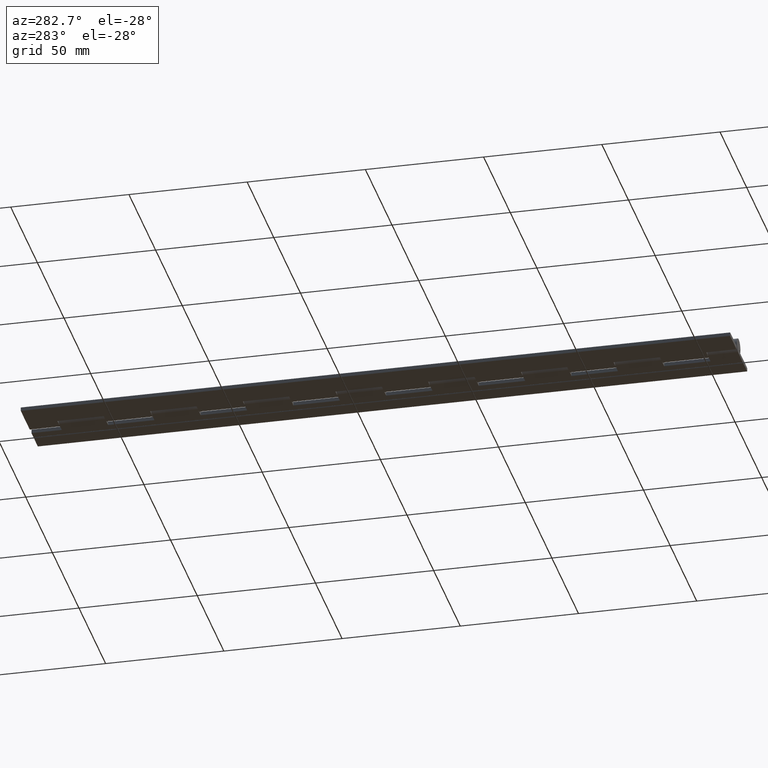
[diagram: clean part render]
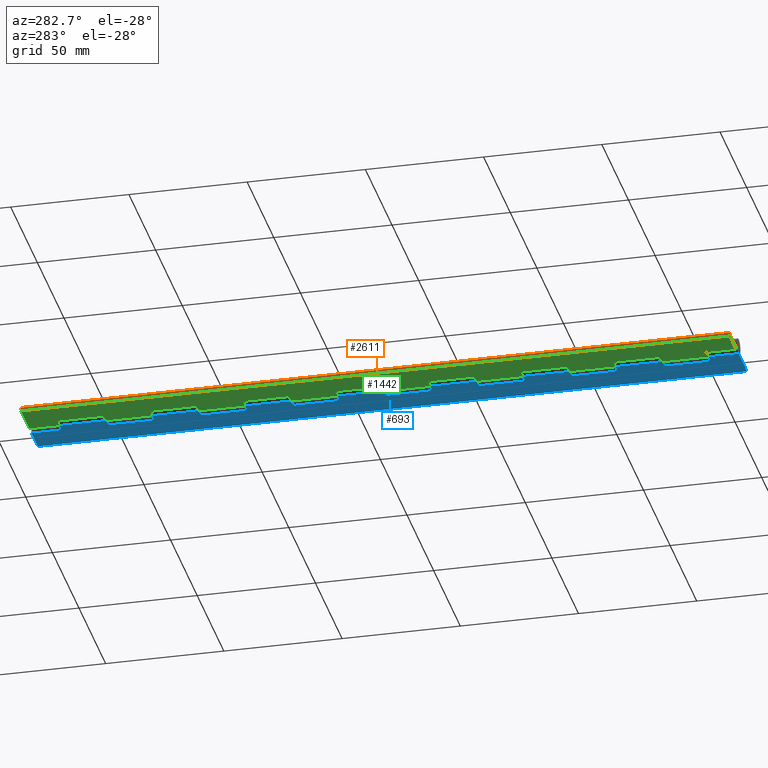
[diagram: same view with three faces highlighted in distinct colors, each labeled with its STEP entity id]
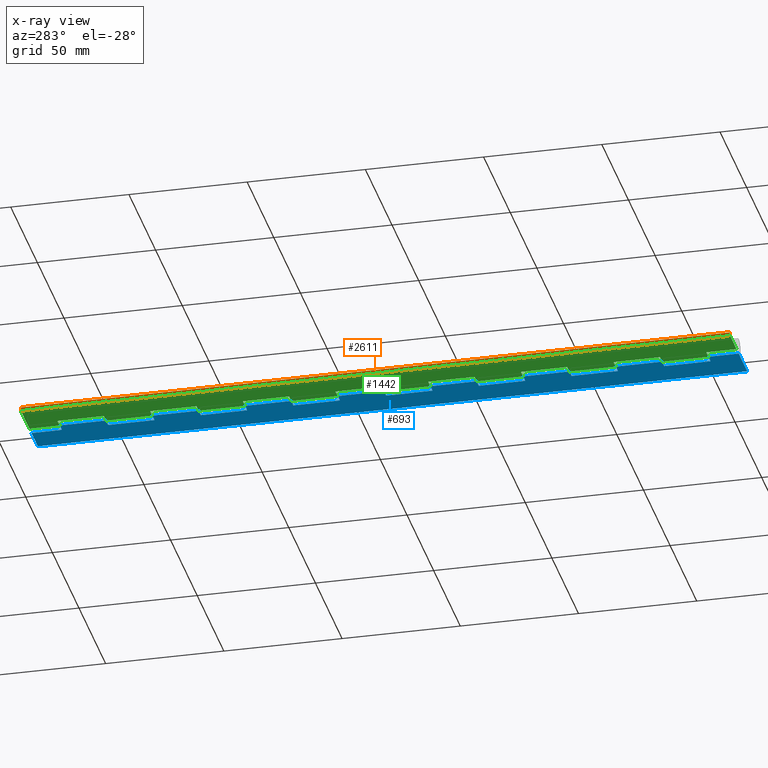
[diagram: x-ray of the same camera — body ghosted, the three highlighted faces saturated]
A machine part, auxiliary view with three faces highlighted in distinct colors.
The next image is the same camera in x-ray (body ghosted, the three faces saturated) — at least one of them is partly hidden behind the body in this view.
Their STEP definitions:

[orange] entity #2611 — the highlighted planar face has unit normal (1, 0, 0).
#19 = CARTESIAN_POINT ( 'NONE',  ( -15.99999982459446300, -12.80000000000000100, -1.750000000000000400 ) ) ;
#212 = VECTOR ( 'NONE', #2826, 1000.000000000000000 ) ;
#363 = CARTESIAN_POINT ( 'NONE',  ( -15.99999982459446300, 274.3999999999999800, -1.750000000000000400 ) ) ;
#651 = DIRECTION ( 'NONE',  ( 1.000000000000000000, -0.0000000000000000000, 0.0000000000000000000 ) ) ;
#685 = LINE ( 'NONE', #2780, #2772 ) ;
#710 = LINE ( 'NONE', #1736, #2128 ) ;
#745 = EDGE_CURVE ( 'NONE', #3490, #2467, #1522, .T. ) ;
#760 = VECTOR ( 'NONE', #2177, 1000.000000000000000 ) ;
#933 = ORIENTED_EDGE ( 'NONE', *, *, #1946, .F. ) ;
#1041 = EDGE_CURVE ( 'NONE', #3054, #2940, #710, .T. ) ;
#1179 = ORIENTED_EDGE ( 'NONE', *, *, #1041, .T. ) ;
#1505 = EDGE_CURVE ( 'NONE', #3054, #3490, #3155, .T. ) ;
#1511 = ORIENTED_EDGE ( 'NONE', *, *, #745, .F. ) ;
#1522 = LINE ( 'NONE', #2685, #760 ) ;
#1662 = FACE_OUTER_BOUND ( 'NONE', #3562, .T. ) ;
#1736 = CARTESIAN_POINT ( 'NONE',  ( -15.99999982459446300, 274.3999999999999800, -3.350000000000000500 ) ) ;
#1946 = EDGE_CURVE ( 'NONE', #2467, #2940, #685, .T. ) ;
#2064 = PLANE ( 'NONE',  #3243 ) ;
#2128 = VECTOR ( 'NONE', #3609, 1000.000000000000000 ) ;
#2177 = DIRECTION ( 'NONE',  ( -0.0000000000000000000, -1.000000000000000000, -0.0000000000000000000 ) ) ;
#2394 = CARTESIAN_POINT ( 'NONE',  ( -15.99999982459446300, 287.1999999999999300, -3.350000000000000500 ) ) ;
#2416 = CARTESIAN_POINT ( 'NONE',  ( -15.99999982459446300, 287.1999999999999300, -1.750000000000000400 ) ) ;
#2467 = VERTEX_POINT ( 'NONE', #19 ) ;
#2511 = ORIENTED_EDGE ( 'NONE', *, *, #1505, .F. ) ;
#2611 = ADVANCED_FACE ( 'NONE', ( #1662 ), #2064, .F. ) ;
#2632 = DIRECTION ( 'NONE',  ( 0.0000000000000000000, 0.0000000000000000000, -1.000000000000000000 ) ) ;
#2685 = CARTESIAN_POINT ( 'NONE',  ( -15.99999982459446300, 274.3999999999999800, -1.750000000000000400 ) ) ;
#2772 = VECTOR ( 'NONE', #2818, 1000.000000000000000 ) ;
#2780 = CARTESIAN_POINT ( 'NONE',  ( -15.99999982459446300, -12.80000000000000100, -1.750000000000000400 ) ) ;
#2818 = DIRECTION ( 'NONE',  ( 0.0000000000000000000, 0.0000000000000000000, -1.000000000000000000 ) ) ;
#2826 = DIRECTION ( 'NONE',  ( 0.0000000000000000000, 0.0000000000000000000, 1.000000000000000000 ) ) ;
#2913 = CARTESIAN_POINT ( 'NONE',  ( -15.99999982459446300, -12.80000000000000100, -3.350000000000000500 ) ) ;
#2940 = VERTEX_POINT ( 'NONE', #2913 ) ;
#3054 = VERTEX_POINT ( 'NONE', #2394 ) ;
#3106 = CARTESIAN_POINT ( 'NONE',  ( -15.99999982459446300, 287.1999999999999300, -3.350000000000000500 ) ) ;
#3155 = LINE ( 'NONE', #3106, #212 ) ;
#3243 = AXIS2_PLACEMENT_3D ( 'NONE', #363, #651, #2632 ) ;
#3490 = VERTEX_POINT ( 'NONE', #2416 ) ;
#3562 = EDGE_LOOP ( 'NONE', ( #1179, #933, #1511, #2511 ) ) ;
#3609 = DIRECTION ( 'NONE',  ( -0.0000000000000000000, -1.000000000000000000, -0.0000000000000000000 ) ) ;

[blue] entity #693 — the highlighted planar face has unit normal (0, 0, 1).
#8 = DIRECTION ( 'NONE',  ( -0.0000000000000000000, -1.000000000000000000, -0.0000000000000000000 ) ) ;
#75 = CARTESIAN_POINT ( 'NONE',  ( 4.000000000000000000, 254.8000000000000400, -3.350002187502757700 ) ) ;
#94 = LINE ( 'NONE', #1856, #3033 ) ;
#98 = LINE ( 'NONE', #2077, #2269 ) ;
#134 = EDGE_CURVE ( 'NONE', #3326, #480, #3561, .T. ) ;
#144 = VECTOR ( 'NONE', #251, 1000.000000000000000 ) ;
#145 = EDGE_CURVE ( 'NONE', #241, #1730, #534, .T. ) ;
#151 = CARTESIAN_POINT ( 'NONE',  ( 0.0000000000000000000, 235.2000000000000200, -3.350002187502757700 ) ) ;
#172 = DIRECTION ( 'NONE',  ( 1.770125995894701000E-016, 1.000000000000000000, -0.0000000000000000000 ) ) ;
#184 = VECTOR ( 'NONE', #2425, 1000.000000000000000 ) ;
#221 = ORIENTED_EDGE ( 'NONE', *, *, #1506, .T. ) ;
#225 = CARTESIAN_POINT ( 'NONE',  ( 0.0000000000000000000, 274.4000000000000300, -3.350002187502757700 ) ) ;
#231 = DIRECTION ( 'NONE',  ( -1.000000000000000000, -0.0000000000000000000, -0.0000000000000000000 ) ) ;
#241 = VERTEX_POINT ( 'NONE', #1503 ) ;
#242 = DIRECTION ( 'NONE',  ( 1.000000000000000000, 0.0000000000000000000, -1.084202172485504400E-016 ) ) ;
#243 = CARTESIAN_POINT ( 'NONE',  ( 0.0000000000000000000, 78.40000000000000600, -3.350002187502757700 ) ) ;
#245 = CARTESIAN_POINT ( 'NONE',  ( -6.153854184092820600E-016, -12.80000000000000100, -3.350002187502755900 ) ) ;
#249 = CARTESIAN_POINT ( 'NONE',  ( 4.000000000000000000, 137.2000000000000200, -3.350002187502757700 ) ) ;
#251 = DIRECTION ( 'NONE',  ( -0.0000000000000000000, -1.000000000000000000, -0.0000000000000000000 ) ) ;
#264 = VECTOR ( 'NONE', #1587, 1000.000000000000000 ) ;
#276 = CARTESIAN_POINT ( 'NONE',  ( 16.00000000000000000, 274.3999999999999800, -3.350002187502757700 ) ) ;
#301 = LINE ( 'NONE', #1347, #891 ) ;
#310 = VECTOR ( 'NONE', #1083, 1000.000000000000000 ) ;
#327 = CARTESIAN_POINT ( 'NONE',  ( 4.000000000000000000, 98.00000000000001400, -3.350002187502757700 ) ) ;
#343 = DIRECTION ( 'NONE',  ( 1.000000000000000000, 0.0000000000000000000, -1.084202172485504400E-016 ) ) ;
#358 = ORIENTED_EDGE ( 'NONE', *, *, #446, .T. ) ;
#359 = VECTOR ( 'NONE', #1954, 1000.000000000000000 ) ;
#400 = ORIENTED_EDGE ( 'NONE', *, *, #3464, .F. ) ;
#429 = EDGE_CURVE ( 'NONE', #2158, #2239, #577, .T. ) ;
#432 = DIRECTION ( 'NONE',  ( 1.000000000000000000, 0.0000000000000000000, -1.084202172485504400E-016 ) ) ;
#438 = CARTESIAN_POINT ( 'NONE',  ( -3.350002187502754100, 0.0000000000000000000, -3.350002187502757700 ) ) ;
#446 = EDGE_CURVE ( 'NONE', #1811, #1162, #2934, .T. ) ;
#447 = DIRECTION ( 'NONE',  ( -0.0000000000000000000, -1.000000000000000000, -0.0000000000000000000 ) ) ;
#448 = CARTESIAN_POINT ( 'NONE',  ( -3.350002187502757700, 176.4000000000000300, -3.350002187502757700 ) ) ;
#459 = VECTOR ( 'NONE', #2970, 1000.000000000000000 ) ;
#462 = EDGE_CURVE ( 'NONE', #3186, #3430, #2755, .T. ) ;
#463 = LINE ( 'NONE', #2866, #3394 ) ;
#467 = CARTESIAN_POINT ( 'NONE',  ( 16.00000000000000000, 274.3999999999999800, -3.350002187502757700 ) ) ;
#470 = VERTEX_POINT ( 'NONE', #3616 ) ;
#480 = VERTEX_POINT ( 'NONE', #1375 ) ;
#483 = CARTESIAN_POINT ( 'NONE',  ( 0.0000000000000000000, 117.6000000000000100, -3.350002187502757700 ) ) ;
#491 = CARTESIAN_POINT ( 'NONE',  ( 3.999999999999996400, 235.2000000000000200, -3.350002187502756400 ) ) ;
#492 = ORIENTED_EDGE ( 'NONE', *, *, #2831, .T. ) ;
#524 = EDGE_CURVE ( 'NONE', #764, #3607, #1908, .T. ) ;
#530 = ORIENTED_EDGE ( 'NONE', *, *, #2677, .T. ) ;
#534 = LINE ( 'NONE', #585, #3474 ) ;
#538 = DIRECTION ( 'NONE',  ( -0.0000000000000000000, -1.000000000000000000, -0.0000000000000000000 ) ) ;
#551 = CARTESIAN_POINT ( 'NONE',  ( -3.350002187502757700, 215.6000000000000500, -3.350002187502757700 ) ) ;
#560 = VERTEX_POINT ( 'NONE', #249 ) ;
#576 = ORIENTED_EDGE ( 'NONE', *, *, #3099, .T. ) ;
#577 = LINE ( 'NONE', #438, #3515 ) ;
#585 = CARTESIAN_POINT ( 'NONE',  ( 0.0000000000000000000, 274.3999999999999800, -3.350002187502755900 ) ) ;
#616 = CARTESIAN_POINT ( 'NONE',  ( 0.0000000000000000000, 176.4000000000000300, -3.350002187502757700 ) ) ;
#622 = ORIENTED_EDGE ( 'NONE', *, *, #1754, .T. ) ;
#657 = EDGE_CURVE ( 'NONE', #1349, #1979, #3378, .T. ) ;
#680 = EDGE_CURVE ( 'NONE', #3406, #1159, #1785, .T. ) ;
#682 = CARTESIAN_POINT ( 'NONE',  ( 16.00000000000000000, 287.1999999999999300, -3.350002187502757700 ) ) ;
#693 = ADVANCED_FACE ( 'NONE', ( #3211 ), #1599, .F. ) ;
#696 = DIRECTION ( 'NONE',  ( -0.0000000000000000000, -1.000000000000000000, -0.0000000000000000000 ) ) ;
#713 = ORIENTED_EDGE ( 'NONE', *, *, #2769, .T. ) ;
#724 = VECTOR ( 'NONE', #1197, 1000.000000000000000 ) ;
#748 = CARTESIAN_POINT ( 'NONE',  ( 0.0000000000000000000, 274.3999999999999800, -3.350002187502755900 ) ) ;
#757 = VECTOR ( 'NONE', #2647, 1000.000000000000000 ) ;
#762 = ORIENTED_EDGE ( 'NONE', *, *, #2765, .T. ) ;
#764 = VERTEX_POINT ( 'NONE', #225 ) ;
#818 = LINE ( 'NONE', #2148, #2991 ) ;
#821 = LINE ( 'NONE', #3654, #144 ) ;
#856 = ORIENTED_EDGE ( 'NONE', *, *, #1649, .F. ) ;
#861 = LINE ( 'NONE', #448, #184 ) ;
#886 = CARTESIAN_POINT ( 'NONE',  ( 4.000000000000000000, 294.0000000000000600, -3.350002187502757700 ) ) ;
#891 = VECTOR ( 'NONE', #231, 1000.000000000000000 ) ;
#894 = DIRECTION ( 'NONE',  ( 1.000000000000000000, 0.0000000000000000000, 0.0000000000000000000 ) ) ;
#917 = VERTEX_POINT ( 'NONE', #3342 ) ;
#929 = DIRECTION ( 'NONE',  ( -0.0000000000000000000, -1.000000000000000000, -0.0000000000000000000 ) ) ;
#932 = CARTESIAN_POINT ( 'NONE',  ( 16.00000000000000000, 117.6000000000000100, -3.350002187502757700 ) ) ;
#939 = VECTOR ( 'NONE', #2711, 1000.000000000000000 ) ;
#942 = CARTESIAN_POINT ( 'NONE',  ( 3.999999999999996400, 274.4000000000000300, -3.350002187502757700 ) ) ;
#945 = VERTEX_POINT ( 'NONE', #616 ) ;
#951 = EDGE_LOOP ( 'NONE', ( #2530, #1037, #1697, #2356, #856, #3028, #2257, #762, #2933, #2169, #3600, #2088, #576, #2754, #492, #2661, #1156, #400, #2570, #1738, #221, #3069, #1822, #1466, #713, #1372, #622, #530, #1956, #1867, #358, #2526, #1033, #2438 ) ) ;
#956 = VERTEX_POINT ( 'NONE', #243 ) ;
#995 = CARTESIAN_POINT ( 'NONE',  ( 4.000000000000000000, 215.6000000000000500, -3.350002187502757700 ) ) ;
#1006 = DIRECTION ( 'NONE',  ( -1.000000000000000000, -0.0000000000000000000, -0.0000000000000000000 ) ) ;
#1017 = CARTESIAN_POINT ( 'NONE',  ( 0.0000000000000000000, -12.80000000000000100, -3.350002187502755900 ) ) ;
#1024 = CARTESIAN_POINT ( 'NONE',  ( 0.0000000000000000000, 274.3999999999999800, -3.350002187502755900 ) ) ;
#1033 = ORIENTED_EDGE ( 'NONE', *, *, #1950, .T. ) ;
#1037 = ORIENTED_EDGE ( 'NONE', *, *, #134, .T. ) ;
#1058 = EDGE_CURVE ( 'NONE', #3575, #3340, #2793, .T. ) ;
#1072 = VERTEX_POINT ( 'NONE', #3462 ) ;
#1079 = VERTEX_POINT ( 'NONE', #483 ) ;
#1083 = DIRECTION ( 'NONE',  ( -0.0000000000000000000, -1.000000000000000000, -0.0000000000000000000 ) ) ;
#1103 = EDGE_CURVE ( 'NONE', #241, #3186, #1953, .T. ) ;
#1156 = ORIENTED_EDGE ( 'NONE', *, *, #657, .T. ) ;
#1159 = VERTEX_POINT ( 'NONE', #2660 ) ;
#1162 = VERTEX_POINT ( 'NONE', #491 ) ;
#1183 = CARTESIAN_POINT ( 'NONE',  ( 4.000000000000000000, 19.60000000000000100, -3.350002187502757700 ) ) ;
#1195 = LINE ( 'NONE', #245, #3370 ) ;
#1197 = DIRECTION ( 'NONE',  ( -1.000000000000000000, 0.0000000000000000000, 1.084202172485504400E-016 ) ) ;
#1243 = EDGE_CURVE ( 'NONE', #956, #1072, #3466, .T. ) ;
#1246 = LINE ( 'NONE', #551, #3420 ) ;
#1265 = VECTOR ( 'NONE', #3068, 1000.000000000000000 ) ;
#1284 = VECTOR ( 'NONE', #242, 1000.000000000000000 ) ;
#1293 = EDGE_CURVE ( 'NONE', #2466, #1349, #2251, .T. ) ;
#1296 = CARTESIAN_POINT ( 'NONE',  ( 16.00000000000000000, 235.2000000000000200, -3.350002187502757700 ) ) ;
#1322 = VERTEX_POINT ( 'NONE', #3182 ) ;
#1332 = VECTOR ( 'NONE', #1963, 1000.000000000000000 ) ;
#1344 = VECTOR ( 'NONE', #2195, 1000.000000000000000 ) ;
#1347 = CARTESIAN_POINT ( 'NONE',  ( -3.350002187502757700, 137.2000000000000200, -3.350002187502757700 ) ) ;
#1349 = VERTEX_POINT ( 'NONE', #3196 ) ;
#1355 = EDGE_CURVE ( 'NONE', #3604, #945, #2083, .T. ) ;
#1359 = CARTESIAN_POINT ( 'NONE',  ( 0.0000000000000000000, 274.3999999999999800, -3.350002187502755900 ) ) ;
#1372 = ORIENTED_EDGE ( 'NONE', *, *, #1355, .F. ) ;
#1375 = CARTESIAN_POINT ( 'NONE',  ( 3.999999999999999100, 287.1999999999999300, -3.350002187502757700 ) ) ;
#1389 = LINE ( 'NONE', #1613, #2813 ) ;
#1466 = ORIENTED_EDGE ( 'NONE', *, *, #3415, .T. ) ;
#1470 = EDGE_CURVE ( 'NONE', #3409, #3617, #1246, .T. ) ;
#1489 = CARTESIAN_POINT ( 'NONE',  ( 0.0000000000000000000, 274.3999999999999800, -3.350002187502755900 ) ) ;
#1496 = VECTOR ( 'NONE', #1543, 1000.000000000000000 ) ;
#1500 = CARTESIAN_POINT ( 'NONE',  ( 16.00000000000000000, 287.1999999999999300, -3.350002187502757700 ) ) ;
#1501 = VERTEX_POINT ( 'NONE', #3632 ) ;
#1503 = CARTESIAN_POINT ( 'NONE',  ( 0.0000000000000000000, 39.20000000000000300, -3.350002187502757700 ) ) ;
#1506 = EDGE_CURVE ( 'NONE', #560, #1322, #301, .T. ) ;
#1543 = DIRECTION ( 'NONE',  ( 1.770125995894701000E-016, 1.000000000000000000, -0.0000000000000000000 ) ) ;
#1573 = CARTESIAN_POINT ( 'NONE',  ( 0.0000000000000000000, 274.3999999999999800, -3.350002187502755900 ) ) ;
#1580 = VECTOR ( 'NONE', #1006, 1000.000000000000000 ) ;
#1587 = DIRECTION ( 'NONE',  ( -0.0000000000000000000, -1.000000000000000000, -0.0000000000000000000 ) ) ;
#1598 = DIRECTION ( 'NONE',  ( 1.000000000000000000, 0.0000000000000000000, 0.0000000000000000000 ) ) ;
#1599 = PLANE ( 'NONE',  #1686 ) ;
#1613 = CARTESIAN_POINT ( 'NONE',  ( 16.00000000000000000, 78.40000000000002000, -3.350002187502757700 ) ) ;
#1617 = EDGE_CURVE ( 'NONE', #3575, #1322, #2031, .T. ) ;
#1643 = DIRECTION ( 'NONE',  ( 1.000000000000000000, 0.0000000000000000000, -1.084202172485504400E-016 ) ) ;
#1649 = EDGE_CURVE ( 'NONE', #1816, #1159, #1195, .T. ) ;
#1684 = CARTESIAN_POINT ( 'NONE',  ( 0.0000000000000000000, 196.0000000000000300, -3.350002187502757700 ) ) ;
#1686 = AXIS2_PLACEMENT_3D ( 'NONE', #467, #3569, #2736 ) ;
#1689 = LINE ( 'NONE', #2460, #939 ) ;
#1697 = ORIENTED_EDGE ( 'NONE', *, *, #2604, .F. ) ;
#1709 = CARTESIAN_POINT ( 'NONE',  ( 0.0000000000000000000, 0.0000000000000000000, -3.350002187502757700 ) ) ;
#1730 = VERTEX_POINT ( 'NONE', #3035 ) ;
#1738 = ORIENTED_EDGE ( 'NONE', *, *, #2827, .T. ) ;
#1754 = EDGE_CURVE ( 'NONE', #3604, #917, #1689, .T. ) ;
#1785 = LINE ( 'NONE', #276, #264 ) ;
#1811 = VERTEX_POINT ( 'NONE', #151 ) ;
#1816 = VERTEX_POINT ( 'NONE', #1017 ) ;
#1822 = ORIENTED_EDGE ( 'NONE', *, *, #1058, .T. ) ;
#1856 = CARTESIAN_POINT ( 'NONE',  ( 4.000000000000000000, 19.60000000000000100, -3.350002187502757700 ) ) ;
#1867 = ORIENTED_EDGE ( 'NONE', *, *, #2074, .F. ) ;
#1869 = CARTESIAN_POINT ( 'NONE',  ( 4.000000000000000000, 58.80000000000000400, -3.350002187502757700 ) ) ;
#1878 = LINE ( 'NONE', #995, #459 ) ;
#1892 = DIRECTION ( 'NONE',  ( 1.000000000000000000, 0.0000000000000000000, -1.084202172485504400E-016 ) ) ;
#1908 = LINE ( 'NONE', #1024, #310 ) ;
#1933 = EDGE_CURVE ( 'NONE', #2272, #1730, #2102, .T. ) ;
#1944 = DIRECTION ( 'NONE',  ( 1.000000000000000000, 0.0000000000000000000, -1.084202172485504400E-016 ) ) ;
#1950 = EDGE_CURVE ( 'NONE', #3365, #3607, #3528, .T. ) ;
#1952 = VECTOR ( 'NONE', #696, 1000.000000000000000 ) ;
#1953 = LINE ( 'NONE', #2738, #1284 ) ;
#1954 = DIRECTION ( 'NONE',  ( -1.000000000000000000, -0.0000000000000000000, -0.0000000000000000000 ) ) ;
#1956 = ORIENTED_EDGE ( 'NONE', *, *, #1470, .T. ) ;
#1963 = DIRECTION ( 'NONE',  ( 1.770125995894701000E-016, 1.000000000000000000, -0.0000000000000000000 ) ) ;
#1979 = VERTEX_POINT ( 'NONE', #3390 ) ;
#1997 = VECTOR ( 'NONE', #432, 1000.000000000000000 ) ;
#2031 = LINE ( 'NONE', #1359, #2701 ) ;
#2037 = VECTOR ( 'NONE', #1643, 1000.000000000000000 ) ;
#2074 = EDGE_CURVE ( 'NONE', #1811, #3617, #821, .T. ) ;
#2077 = CARTESIAN_POINT ( 'NONE',  ( 4.000000000000000000, 254.8000000000000400, -3.350002187502757700 ) ) ;
#2083 = LINE ( 'NONE', #1489, #3595 ) ;
#2088 = ORIENTED_EDGE ( 'NONE', *, *, #462, .T. ) ;
#2102 = LINE ( 'NONE', #2790, #1344 ) ;
#2146 = VECTOR ( 'NONE', #172, 1000.000000000000000 ) ;
#2148 = CARTESIAN_POINT ( 'NONE',  ( 0.0000000000000000000, 274.3999999999999800, -3.350002187502755900 ) ) ;
#2149 = DIRECTION ( 'NONE',  ( 1.770125995894701000E-016, 1.000000000000000000, -0.0000000000000000000 ) ) ;
#2158 = VERTEX_POINT ( 'NONE', #1709 ) ;
#2169 = ORIENTED_EDGE ( 'NONE', *, *, #145, .F. ) ;
#2194 = CARTESIAN_POINT ( 'NONE',  ( 3.999999999999996400, 78.40000000000002000, -3.350002187502756400 ) ) ;
#2195 = DIRECTION ( 'NONE',  ( -1.000000000000000000, -0.0000000000000000000, -0.0000000000000000000 ) ) ;
#2207 = CARTESIAN_POINT ( 'NONE',  ( 0.0000000000000000000, 156.8000000000000100, -3.350002187502757700 ) ) ;
#2239 = VERTEX_POINT ( 'NONE', #2549 ) ;
#2251 = LINE ( 'NONE', #327, #757 ) ;
#2257 = ORIENTED_EDGE ( 'NONE', *, *, #429, .T. ) ;
#2266 = LINE ( 'NONE', #2441, #2146 ) ;
#2269 = VECTOR ( 'NONE', #3495, 1000.000000000000000 ) ;
#2272 = VERTEX_POINT ( 'NONE', #1183 ) ;
#2318 = LINE ( 'NONE', #2408, #1580 ) ;
#2356 = ORIENTED_EDGE ( 'NONE', *, *, #680, .T. ) ;
#2408 = CARTESIAN_POINT ( 'NONE',  ( -3.350002187502757700, 58.80000000000000400, -3.350002187502757700 ) ) ;
#2425 = DIRECTION ( 'NONE',  ( -1.000000000000000000, -0.0000000000000000000, -0.0000000000000000000 ) ) ;
#2438 = ORIENTED_EDGE ( 'NONE', *, *, #524, .F. ) ;
#2441 = CARTESIAN_POINT ( 'NONE',  ( 4.000000000000000000, 137.2000000000000200, -3.350002187502757700 ) ) ;
#2455 = VECTOR ( 'NONE', #343, 1000.000000000000000 ) ;
#2460 = CARTESIAN_POINT ( 'NONE',  ( 16.00000000000000000, 196.0000000000000300, -3.350002187502757700 ) ) ;
#2466 = VERTEX_POINT ( 'NONE', #2194 ) ;
#2516 = CARTESIAN_POINT ( 'NONE',  ( 0.0000000000000000000, 254.8000000000000400, -3.350002187502757700 ) ) ;
#2521 = CARTESIAN_POINT ( 'NONE',  ( 16.00000000000000000, 156.8000000000000100, -3.350002187502757700 ) ) ;
#2526 = ORIENTED_EDGE ( 'NONE', *, *, #2973, .T. ) ;
#2530 = ORIENTED_EDGE ( 'NONE', *, *, #2887, .T. ) ;
#2549 = CARTESIAN_POINT ( 'NONE',  ( 3.999999999999996400, 0.0000000000000000000, -3.350002187502757700 ) ) ;
#2570 = ORIENTED_EDGE ( 'NONE', *, *, #3287, .T. ) ;
#2604 = EDGE_CURVE ( 'NONE', #3406, #480, #2990, .T. ) ;
#2647 = DIRECTION ( 'NONE',  ( 1.770125995894701000E-016, 1.000000000000000000, -0.0000000000000000000 ) ) ;
#2660 = CARTESIAN_POINT ( 'NONE',  ( 16.00000000000000000, -12.80000000000000100, -3.350002187502757700 ) ) ;
#2661 = ORIENTED_EDGE ( 'NONE', *, *, #1293, .T. ) ;
#2669 = CARTESIAN_POINT ( 'NONE',  ( 4.000000000000000000, 58.80000000000000400, -3.350002187502757700 ) ) ;
#2677 = EDGE_CURVE ( 'NONE', #917, #3409, #1878, .T. ) ;
#2701 = VECTOR ( 'NONE', #538, 1000.000000000000000 ) ;
#2711 = DIRECTION ( 'NONE',  ( 1.000000000000000000, 0.0000000000000000000, -1.084202172485504400E-016 ) ) ;
#2736 = DIRECTION ( 'NONE',  ( 1.000000000000000000, 0.0000000000000000000, -1.084202172485504400E-016 ) ) ;
#2738 = CARTESIAN_POINT ( 'NONE',  ( 16.00000000000000000, 39.20000000000001000, -3.350002187502757700 ) ) ;
#2754 = ORIENTED_EDGE ( 'NONE', *, *, #1243, .F. ) ;
#2755 = LINE ( 'NONE', #1869, #1332 ) ;
#2762 = CARTESIAN_POINT ( 'NONE',  ( -3.350002187502757700, 98.00000000000001400, -3.350002187502757700 ) ) ;
#2765 = EDGE_CURVE ( 'NONE', #2239, #2272, #94, .T. ) ;
#2769 = EDGE_CURVE ( 'NONE', #1501, #945, #861, .T. ) ;
#2790 = CARTESIAN_POINT ( 'NONE',  ( -3.350002187502757700, 19.60000000000000100, -3.350002187502757700 ) ) ;
#2793 = LINE ( 'NONE', #2521, #2037 ) ;
#2802 = VECTOR ( 'NONE', #3154, 1000.000000000000000 ) ;
#2813 = VECTOR ( 'NONE', #1892, 1000.000000000000000 ) ;
#2827 = EDGE_CURVE ( 'NONE', #470, #560, #2266, .T. ) ;
#2831 = EDGE_CURVE ( 'NONE', #956, #2466, #1389, .T. ) ;
#2866 = CARTESIAN_POINT ( 'NONE',  ( -3.350002187502754100, 274.4000000000000300, -3.350002187502757700 ) ) ;
#2887 = EDGE_CURVE ( 'NONE', #764, #3326, #463, .T. ) ;
#2917 = CARTESIAN_POINT ( 'NONE',  ( 3.999999999999996400, 156.8000000000000100, -3.350002187502756400 ) ) ;
#2933 = ORIENTED_EDGE ( 'NONE', *, *, #1933, .T. ) ;
#2934 = LINE ( 'NONE', #1296, #1997 ) ;
#2950 = CARTESIAN_POINT ( 'NONE',  ( 4.000000000000000000, 215.6000000000000500, -3.350002187502757700 ) ) ;
#2970 = DIRECTION ( 'NONE',  ( 1.770125995894701000E-016, 1.000000000000000000, -0.0000000000000000000 ) ) ;
#2973 = EDGE_CURVE ( 'NONE', #1162, #3365, #98, .T. ) ;
#2990 = LINE ( 'NONE', #1500, #724 ) ;
#2991 = VECTOR ( 'NONE', #447, 1000.000000000000000 ) ;
#3028 = ORIENTED_EDGE ( 'NONE', *, *, #3145, .F. ) ;
#3033 = VECTOR ( 'NONE', #2149, 1000.000000000000000 ) ;
#3035 = CARTESIAN_POINT ( 'NONE',  ( 0.0000000000000000000, 19.60000000000000100, -3.350002187502757700 ) ) ;
#3068 = DIRECTION ( 'NONE',  ( -1.000000000000000000, -0.0000000000000000000, -0.0000000000000000000 ) ) ;
#3069 = ORIENTED_EDGE ( 'NONE', *, *, #1617, .F. ) ;
#3099 = EDGE_CURVE ( 'NONE', #3430, #1072, #2318, .T. ) ;
#3145 = EDGE_CURVE ( 'NONE', #2158, #1816, #818, .T. ) ;
#3154 = DIRECTION ( 'NONE',  ( 1.770125995894701000E-016, 1.000000000000000000, -0.0000000000000000000 ) ) ;
#3182 = CARTESIAN_POINT ( 'NONE',  ( 0.0000000000000000000, 137.2000000000000200, -3.350002187502757700 ) ) ;
#3186 = VERTEX_POINT ( 'NONE', #3680 ) ;
#3196 = CARTESIAN_POINT ( 'NONE',  ( 4.000000000000000000, 98.00000000000001400, -3.350002187502757700 ) ) ;
#3211 = FACE_OUTER_BOUND ( 'NONE', #951, .T. ) ;
#3220 = LINE ( 'NONE', #932, #2455 ) ;
#3287 = EDGE_CURVE ( 'NONE', #1079, #470, #3220, .T. ) ;
#3318 = LINE ( 'NONE', #1573, #3492 ) ;
#3326 = VERTEX_POINT ( 'NONE', #942 ) ;
#3340 = VERTEX_POINT ( 'NONE', #2917 ) ;
#3342 = CARTESIAN_POINT ( 'NONE',  ( 3.999999999999996400, 196.0000000000000300, -3.350002187502756400 ) ) ;
#3346 = CARTESIAN_POINT ( 'NONE',  ( -3.350002187502757700, 254.8000000000000400, -3.350002187502757700 ) ) ;
#3355 = DIRECTION ( 'NONE',  ( -1.000000000000000000, -0.0000000000000000000, -0.0000000000000000000 ) ) ;
#3365 = VERTEX_POINT ( 'NONE', #75 ) ;
#3370 = VECTOR ( 'NONE', #1944, 1000.000000000000000 ) ;
#3378 = LINE ( 'NONE', #2762, #359 ) ;
#3379 = CARTESIAN_POINT ( 'NONE',  ( 0.0000000000000000000, 215.6000000000000500, -3.350002187502757700 ) ) ;
#3390 = CARTESIAN_POINT ( 'NONE',  ( 0.0000000000000000000, 98.00000000000001400, -3.350002187502757700 ) ) ;
#3394 = VECTOR ( 'NONE', #894, 1000.000000000000000 ) ;
#3406 = VERTEX_POINT ( 'NONE', #682 ) ;
#3409 = VERTEX_POINT ( 'NONE', #2950 ) ;
#3415 = EDGE_CURVE ( 'NONE', #3340, #1501, #3577, .T. ) ;
#3420 = VECTOR ( 'NONE', #3355, 1000.000000000000000 ) ;
#3430 = VERTEX_POINT ( 'NONE', #2669 ) ;
#3462 = CARTESIAN_POINT ( 'NONE',  ( 0.0000000000000000000, 58.80000000000000400, -3.350002187502757700 ) ) ;
#3464 = EDGE_CURVE ( 'NONE', #1079, #1979, #3318, .T. ) ;
#3466 = LINE ( 'NONE', #748, #1952 ) ;
#3474 = VECTOR ( 'NONE', #8, 1000.000000000000000 ) ;
#3492 = VECTOR ( 'NONE', #3547, 1000.000000000000000 ) ;
#3495 = DIRECTION ( 'NONE',  ( 1.770125995894701000E-016, 1.000000000000000000, -0.0000000000000000000 ) ) ;
#3515 = VECTOR ( 'NONE', #1598, 1000.000000000000000 ) ;
#3522 = CARTESIAN_POINT ( 'NONE',  ( 4.000000000000000000, 176.4000000000000300, -3.350002187502757700 ) ) ;
#3528 = LINE ( 'NONE', #3346, #1265 ) ;
#3547 = DIRECTION ( 'NONE',  ( -0.0000000000000000000, -1.000000000000000000, -0.0000000000000000000 ) ) ;
#3561 = LINE ( 'NONE', #886, #2802 ) ;
#3569 = DIRECTION ( 'NONE',  ( 1.084202172485504400E-016, -0.0000000000000000000, 1.000000000000000000 ) ) ;
#3575 = VERTEX_POINT ( 'NONE', #2207 ) ;
#3577 = LINE ( 'NONE', #3522, #1496 ) ;
#3595 = VECTOR ( 'NONE', #929, 1000.000000000000000 ) ;
#3600 = ORIENTED_EDGE ( 'NONE', *, *, #1103, .T. ) ;
#3604 = VERTEX_POINT ( 'NONE', #1684 ) ;
#3607 = VERTEX_POINT ( 'NONE', #2516 ) ;
#3616 = CARTESIAN_POINT ( 'NONE',  ( 3.999999999999996400, 117.6000000000000100, -3.350002187502756400 ) ) ;
#3617 = VERTEX_POINT ( 'NONE', #3379 ) ;
#3632 = CARTESIAN_POINT ( 'NONE',  ( 4.000000000000000000, 176.4000000000000300, -3.350002187502757700 ) ) ;
#3654 = CARTESIAN_POINT ( 'NONE',  ( 0.0000000000000000000, 274.3999999999999800, -3.350002187502755900 ) ) ;
#3680 = CARTESIAN_POINT ( 'NONE',  ( 3.999999999999996400, 39.20000000000001000, -3.350002187502756400 ) ) ;

[green] entity #1442 — the highlighted planar face has unit normal (0, 0, 1).
#31 = LINE ( 'NONE', #2429, #2975 ) ;
#46 = CARTESIAN_POINT ( 'NONE',  ( -3.999999824594461900, 117.6000000000000100, -3.350000000000000500 ) ) ;
#50 = CARTESIAN_POINT ( 'NONE',  ( 0.0000000000000000000, 274.3999999999999800, -3.350000000000000500 ) ) ;
#53 = LINE ( 'NONE', #3580, #1487 ) ;
#73 = VECTOR ( 'NONE', #2137, 1000.000000000000000 ) ;
#97 = VECTOR ( 'NONE', #2261, 1000.000000000000000 ) ;
#115 = ORIENTED_EDGE ( 'NONE', *, *, #834, .T. ) ;
#132 = VECTOR ( 'NONE', #1297, 1000.000000000000000 ) ;
#152 = CARTESIAN_POINT ( 'NONE',  ( -15.99999982459446300, 78.40000000000002000, -3.350000000000000500 ) ) ;
#160 = DIRECTION ( 'NONE',  ( -1.000000000000000000, -0.0000000000000000000, 0.0000000000000000000 ) ) ;
#166 = EDGE_CURVE ( 'NONE', #2763, #3054, #1208, .T. ) ;
#207 = CARTESIAN_POINT ( 'NONE',  ( -3.999999824594463700, 0.0000000000000000000, -3.350000000000000500 ) ) ;
#230 = LINE ( 'NONE', #911, #1002 ) ;
#239 = CARTESIAN_POINT ( 'NONE',  ( -3.999999824594459200, 137.2000000000000200, -3.350000000000000500 ) ) ;
#252 = ORIENTED_EDGE ( 'NONE', *, *, #1060, .T. ) ;
#257 = DIRECTION ( 'NONE',  ( -1.000000000000000000, -0.0000000000000000000, 0.0000000000000000000 ) ) ;
#275 = VERTEX_POINT ( 'NONE', #3207 ) ;
#294 = ORIENTED_EDGE ( 'NONE', *, *, #2997, .T. ) ;
#325 = EDGE_CURVE ( 'NONE', #2988, #1379, #858, .T. ) ;
#330 = CARTESIAN_POINT ( 'NONE',  ( -3.999999824594459200, 98.00000000000001400, -3.350000000000000500 ) ) ;
#336 = DIRECTION ( 'NONE',  ( 1.327594496921025700E-016, -1.000000000000000000, 0.0000000000000000000 ) ) ;
#376 = CARTESIAN_POINT ( 'NONE',  ( -3.999999824594459200, 58.80000000000000400, -3.350000000000000500 ) ) ;
#412 = CARTESIAN_POINT ( 'NONE',  ( -3.999999824594461900, 117.6000000000000100, -3.350000000000000500 ) ) ;
#417 = EDGE_CURVE ( 'NONE', #1773, #275, #2842, .T. ) ;
#433 = CARTESIAN_POINT ( 'NONE',  ( -3.999999824594459200, 137.2000000000000200, -3.350000000000000500 ) ) ;
#443 = VERTEX_POINT ( 'NONE', #3003 ) ;
#445 = CARTESIAN_POINT ( 'NONE',  ( -3.999999824594461900, 39.20000000000000300, -3.350000000000000500 ) ) ;
#454 = ORIENTED_EDGE ( 'NONE', *, *, #3457, .T. ) ;
#513 = AXIS2_PLACEMENT_3D ( 'NONE', #653, #666, #2636 ) ;
#531 = VECTOR ( 'NONE', #3088, 1000.000000000000000 ) ;
#562 = VERTEX_POINT ( 'NONE', #1849 ) ;
#573 = VERTEX_POINT ( 'NONE', #239 ) ;
#580 = DIRECTION ( 'NONE',  ( 1.327594496921025700E-016, -1.000000000000000000, 0.0000000000000000000 ) ) ;
#597 = EDGE_CURVE ( 'NONE', #904, #3237, #991, .T. ) ;
#613 = CARTESIAN_POINT ( 'NONE',  ( 0.0000000000000000000, 19.60000000000000500, -3.350000000000000500 ) ) ;
#615 = LINE ( 'NONE', #2548, #3549 ) ;
#618 = EDGE_CURVE ( 'NONE', #1874, #1352, #1286, .T. ) ;
#620 = VECTOR ( 'NONE', #2217, 1000.000000000000000 ) ;
#632 = CARTESIAN_POINT ( 'NONE',  ( 0.0000000000000000000, 196.0000000000000300, -3.350000000000000500 ) ) ;
#636 = LINE ( 'NONE', #3115, #2054 ) ;
#653 = CARTESIAN_POINT ( 'NONE',  ( -15.99999982459446300, 274.3999999999999800, -3.350000000000000500 ) ) ;
#666 = DIRECTION ( 'NONE',  ( 0.0000000000000000000, 0.0000000000000000000, 1.000000000000000000 ) ) ;
#672 = VERTEX_POINT ( 'NONE', #2963 ) ;
#684 = VERTEX_POINT ( 'NONE', #2189 ) ;
#686 = CARTESIAN_POINT ( 'NONE',  ( -15.99999982459446300, 117.6000000000000100, -3.350000000000000500 ) ) ;
#710 = LINE ( 'NONE', #1736, #2128 ) ;
#719 = ORIENTED_EDGE ( 'NONE', *, *, #2116, .T. ) ;
#740 = CARTESIAN_POINT ( 'NONE',  ( -15.99999982459446300, 274.4000000000000300, -3.350000000000000500 ) ) ;
#741 = EDGE_CURVE ( 'NONE', #1379, #672, #3025, .T. ) ;
#795 = DIRECTION ( 'NONE',  ( 2.032879073410320800E-016, -1.000000000000000000, 0.0000000000000000000 ) ) ;
#802 = VECTOR ( 'NONE', #3397, 1000.000000000000000 ) ;
#823 = VECTOR ( 'NONE', #160, 1000.000000000000000 ) ;
#834 = EDGE_CURVE ( 'NONE', #2098, #3276, #2839, .T. ) ;
#855 = CARTESIAN_POINT ( 'NONE',  ( -3.999999824594461900, 39.20000000000000300, -3.350000000000000500 ) ) ;
#858 = LINE ( 'NONE', #2946, #2358 ) ;
#868 = VECTOR ( 'NONE', #2047, 1000.000000000000000 ) ;
#887 = CARTESIAN_POINT ( 'NONE',  ( 0.0000000000000000000, 176.4000000000000300, -3.350000000000000500 ) ) ;
#893 = VERTEX_POINT ( 'NONE', #1367 ) ;
#898 = CARTESIAN_POINT ( 'NONE',  ( 0.0000000000000000000, 58.80000000000001800, -3.350000000000000500 ) ) ;
#904 = VERTEX_POINT ( 'NONE', #1446 ) ;
#911 = CARTESIAN_POINT ( 'NONE',  ( -3.999999824594459200, 215.6000000000000500, -3.350000000000000500 ) ) ;
#935 = CARTESIAN_POINT ( 'NONE',  ( -3.999999824594461900, 274.4000000000000300, -3.350000000000000500 ) ) ;
#938 = PLANE ( 'NONE',  #513 ) ;
#963 = ORIENTED_EDGE ( 'NONE', *, *, #2956, .T. ) ;
#979 = DIRECTION ( 'NONE',  ( -1.000000000000000000, -0.0000000000000000000, 0.0000000000000000000 ) ) ;
#986 = DIRECTION ( 'NONE',  ( -1.000000000000000000, -0.0000000000000000000, 0.0000000000000000000 ) ) ;
#991 = LINE ( 'NONE', #3362, #132 ) ;
#996 = ORIENTED_EDGE ( 'NONE', *, *, #3194, .T. ) ;
#1002 = VECTOR ( 'NONE', #2023, 1000.000000000000000 ) ;
#1030 = CARTESIAN_POINT ( 'NONE',  ( -3.999999824594459200, 98.00000000000001400, -3.350000000000000500 ) ) ;
#1041 = EDGE_CURVE ( 'NONE', #3054, #2940, #710, .T. ) ;
#1045 = LINE ( 'NONE', #2040, #1796 ) ;
#1046 = EDGE_CURVE ( 'NONE', #1419, #3290, #2882, .T. ) ;
#1055 = LINE ( 'NONE', #433, #2545 ) ;
#1056 = VERTEX_POINT ( 'NONE', #2310 ) ;
#1060 = EDGE_CURVE ( 'NONE', #2420, #3135, #3551, .T. ) ;
#1066 = EDGE_CURVE ( 'NONE', #3167, #562, #1368, .T. ) ;
#1071 = VECTOR ( 'NONE', #2801, 1000.000000000000000 ) ;
#1087 = VECTOR ( 'NONE', #2579, 1000.000000000000000 ) ;
#1093 = VERTEX_POINT ( 'NONE', #3038 ) ;
#1116 = EDGE_CURVE ( 'NONE', #893, #573, #31, .T. ) ;
#1180 = CARTESIAN_POINT ( 'NONE',  ( 0.0000000000000000000, 254.8000000000000400, -3.350000000000000500 ) ) ;
#1208 = LINE ( 'NONE', #1987, #2622 ) ;
#1247 = ORIENTED_EDGE ( 'NONE', *, *, #1767, .T. ) ;
#1253 = DIRECTION ( 'NONE',  ( 1.000000000000000000, 0.0000000000000000000, 0.0000000000000000000 ) ) ;
#1286 = LINE ( 'NONE', #1397, #531 ) ;
#1295 = CARTESIAN_POINT ( 'NONE',  ( 0.0000000000000000000, 78.40000000000000600, -3.350000000000000500 ) ) ;
#1297 = DIRECTION ( 'NONE',  ( 1.000000000000000000, 0.0000000000000000000, 0.0000000000000000000 ) ) ;
#1307 = CARTESIAN_POINT ( 'NONE',  ( -3.999999824594459200, 176.4000000000000300, -3.350000000000000500 ) ) ;
#1337 = DIRECTION ( 'NONE',  ( -0.0000000000000000000, -1.000000000000000000, -0.0000000000000000000 ) ) ;
#1350 = CARTESIAN_POINT ( 'NONE',  ( 0.0000000000000000000, 0.0000000000000000000, -3.350000000000000500 ) ) ;
#1352 = VERTEX_POINT ( 'NONE', #613 ) ;
#1367 = CARTESIAN_POINT ( 'NONE',  ( -3.999999824594461900, 156.8000000000000100, -3.350000000000000500 ) ) ;
#1368 = LINE ( 'NONE', #330, #3467 ) ;
#1379 = VERTEX_POINT ( 'NONE', #898 ) ;
#1393 = DIRECTION ( 'NONE',  ( -1.000000000000000000, -0.0000000000000000000, 0.0000000000000000000 ) ) ;
#1397 = CARTESIAN_POINT ( 'NONE',  ( -3.999999824594459200, 19.60000000000000100, -3.350000000000000500 ) ) ;
#1407 = LINE ( 'NONE', #445, #2744 ) ;
#1415 = ORIENTED_EDGE ( 'NONE', *, *, #2487, .T. ) ;
#1419 = VERTEX_POINT ( 'NONE', #3166 ) ;
#1442 = ADVANCED_FACE ( 'NONE', ( #2747 ), #938, .F. ) ;
#1446 = CARTESIAN_POINT ( 'NONE',  ( -3.999999824594459200, 254.8000000000000400, -3.350000000000000500 ) ) ;
#1476 = DIRECTION ( 'NONE',  ( 1.000000000000000000, 0.0000000000000000000, 0.0000000000000000000 ) ) ;
#1482 = ORIENTED_EDGE ( 'NONE', *, *, #1581, .T. ) ;
#1485 = EDGE_CURVE ( 'NONE', #2940, #684, #1904, .T. ) ;
#1487 = VECTOR ( 'NONE', #1877, 1000.000000000000000 ) ;
#1502 = ORIENTED_EDGE ( 'NONE', *, *, #166, .F. ) ;
#1510 = EDGE_CURVE ( 'NONE', #3290, #2420, #1645, .T. ) ;
#1519 = ORIENTED_EDGE ( 'NONE', *, *, #3477, .T. ) ;
#1567 = ORIENTED_EDGE ( 'NONE', *, *, #1116, .T. ) ;
#1581 = EDGE_CURVE ( 'NONE', #3276, #893, #615, .T. ) ;
#1597 = CARTESIAN_POINT ( 'NONE',  ( 4.102566777143633800E-016, 287.1999999999999300, -3.350000000000000500 ) ) ;
#1602 = ORIENTED_EDGE ( 'NONE', *, *, #2397, .T. ) ;
#1607 = VECTOR ( 'NONE', #2449, 1000.000000000000000 ) ;
#1634 = CARTESIAN_POINT ( 'NONE',  ( 0.0000000000000000000, 274.3999999999999800, -3.350000000000000500 ) ) ;
#1645 = LINE ( 'NONE', #2522, #3060 ) ;
#1671 = VERTEX_POINT ( 'NONE', #3400 ) ;
#1736 = CARTESIAN_POINT ( 'NONE',  ( -15.99999982459446300, 274.3999999999999800, -3.350000000000000500 ) ) ;
#1752 = CARTESIAN_POINT ( 'NONE',  ( 0.0000000000000000000, 274.3999999999999800, -3.350000000000000500 ) ) ;
#1764 = EDGE_CURVE ( 'NONE', #2763, #443, #1775, .T. ) ;
#1767 = EDGE_CURVE ( 'NONE', #2597, #904, #3107, .T. ) ;
#1773 = VERTEX_POINT ( 'NONE', #1295 ) ;
#1775 = LINE ( 'NONE', #2986, #1607 ) ;
#1796 = VECTOR ( 'NONE', #2610, 1000.000000000000000 ) ;
#1803 = ORIENTED_EDGE ( 'NONE', *, *, #2327, .T. ) ;
#1809 = VERTEX_POINT ( 'NONE', #3305 ) ;
#1836 = EDGE_CURVE ( 'NONE', #2155, #1874, #1407, .T. ) ;
#1837 = LINE ( 'NONE', #2436, #1087 ) ;
#1838 = VECTOR ( 'NONE', #979, 1000.000000000000000 ) ;
#1839 = VERTEX_POINT ( 'NONE', #1350 ) ;
#1849 = CARTESIAN_POINT ( 'NONE',  ( 0.0000000000000000000, 98.00000000000002800, -3.350000000000000500 ) ) ;
#1874 = VERTEX_POINT ( 'NONE', #3057 ) ;
#1877 = DIRECTION ( 'NONE',  ( 1.327594496921025700E-016, -1.000000000000000000, 0.0000000000000000000 ) ) ;
#1883 = CARTESIAN_POINT ( 'NONE',  ( -3.999999824594461900, 274.4000000000000300, -3.350000000000000500 ) ) ;
#1890 = VECTOR ( 'NONE', #986, 1000.000000000000000 ) ;
#1894 = CARTESIAN_POINT ( 'NONE',  ( -3.999999824594463700, 0.0000000000000000000, -3.350000000000000500 ) ) ;
#1904 = LINE ( 'NONE', #2838, #1071 ) ;
#1920 = LINE ( 'NONE', #686, #1838 ) ;
#1987 = CARTESIAN_POINT ( 'NONE',  ( 2.051283388571816900E-016, 287.1999999999999300, -3.350000000000000500 ) ) ;
#2017 = ORIENTED_EDGE ( 'NONE', *, *, #417, .T. ) ;
#2021 = ORIENTED_EDGE ( 'NONE', *, *, #2815, .T. ) ;
#2023 = DIRECTION ( 'NONE',  ( 1.000000000000000000, 0.0000000000000000000, 0.0000000000000000000 ) ) ;
#2040 = CARTESIAN_POINT ( 'NONE',  ( -3.999999824594461900, 78.40000000000000600, -3.350000000000000500 ) ) ;
#2047 = DIRECTION ( 'NONE',  ( -1.000000000000000000, -0.0000000000000000000, -0.0000000000000000000 ) ) ;
#2054 = VECTOR ( 'NONE', #3128, 1000.000000000000000 ) ;
#2086 = VECTOR ( 'NONE', #3435, 1000.000000000000000 ) ;
#2087 = CARTESIAN_POINT ( 'NONE',  ( -15.99999982459446300, 39.20000000000001000, -3.350000000000000500 ) ) ;
#2089 = VECTOR ( 'NONE', #2698, 1000.000000000000000 ) ;
#2098 = VERTEX_POINT ( 'NONE', #887 ) ;
#2116 = EDGE_CURVE ( 'NONE', #2339, #684, #2321, .T. ) ;
#2128 = VECTOR ( 'NONE', #3609, 1000.000000000000000 ) ;
#2137 = DIRECTION ( 'NONE',  ( 1.327594496921025700E-016, -1.000000000000000000, 0.0000000000000000000 ) ) ;
#2145 = VECTOR ( 'NONE', #795, 1000.000000000000000 ) ;
#2155 = VERTEX_POINT ( 'NONE', #855 ) ;
#2157 = DIRECTION ( 'NONE',  ( 1.000000000000000000, 0.0000000000000000000, 0.0000000000000000000 ) ) ;
#2189 = CARTESIAN_POINT ( 'NONE',  ( -3.999999824594461000, -12.80000000000000100, -3.350000000000000500 ) ) ;
#2217 = DIRECTION ( 'NONE',  ( -0.0000000000000000000, -1.000000000000000000, -0.0000000000000000000 ) ) ;
#2225 = LINE ( 'NONE', #1307, #3657 ) ;
#2249 = ORIENTED_EDGE ( 'NONE', *, *, #1510, .T. ) ;
#2254 = VECTOR ( 'NONE', #3651, 1000.000000000000000 ) ;
#2261 = DIRECTION ( 'NONE',  ( -0.0000000000000000000, -1.000000000000000000, -0.0000000000000000000 ) ) ;
#2277 = ORIENTED_EDGE ( 'NONE', *, *, #1066, .T. ) ;
#2295 = CARTESIAN_POINT ( 'NONE',  ( -3.999999824594461900, 196.0000000000000300, -3.350000000000000500 ) ) ;
#2308 = ORIENTED_EDGE ( 'NONE', *, *, #3024, .T. ) ;
#2310 = CARTESIAN_POINT ( 'NONE',  ( -3.999999824594459200, 215.6000000000000500, -3.350000000000000500 ) ) ;
#2320 = ORIENTED_EDGE ( 'NONE', *, *, #1764, .T. ) ;
#2321 = LINE ( 'NONE', #1894, #2145 ) ;
#2327 = EDGE_CURVE ( 'NONE', #1809, #1671, #2367, .T. ) ;
#2339 = VERTEX_POINT ( 'NONE', #207 ) ;
#2342 = ORIENTED_EDGE ( 'NONE', *, *, #325, .T. ) ;
#2349 = CARTESIAN_POINT ( 'NONE',  ( -3.999999824594463700, 0.0000000000000000000, -3.350000000000000500 ) ) ;
#2358 = VECTOR ( 'NONE', #1253, 1000.000000000000000 ) ;
#2364 = LINE ( 'NONE', #740, #823 ) ;
#2367 = LINE ( 'NONE', #3109, #97 ) ;
#2371 = DIRECTION ( 'NONE',  ( -1.000000000000000000, -0.0000000000000000000, 0.0000000000000000000 ) ) ;
#2373 = ORIENTED_EDGE ( 'NONE', *, *, #2812, .T. ) ;
#2394 = CARTESIAN_POINT ( 'NONE',  ( -15.99999982459446300, 287.1999999999999300, -3.350000000000000500 ) ) ;
#2397 = EDGE_CURVE ( 'NONE', #562, #1773, #2850, .T. ) ;
#2420 = VERTEX_POINT ( 'NONE', #3611 ) ;
#2429 = CARTESIAN_POINT ( 'NONE',  ( -3.999999824594461900, 156.8000000000000100, -3.350000000000000500 ) ) ;
#2436 = CARTESIAN_POINT ( 'NONE',  ( 0.0000000000000000000, 274.3999999999999800, -3.350000000000000500 ) ) ;
#2449 = DIRECTION ( 'NONE',  ( -0.0000000000000000000, -1.000000000000000000, -0.0000000000000000000 ) ) ;
#2452 = ORIENTED_EDGE ( 'NONE', *, *, #1485, .F. ) ;
#2457 = LINE ( 'NONE', #2349, #868 ) ;
#2487 = EDGE_CURVE ( 'NONE', #1352, #1839, #1837, .T. ) ;
#2498 = LINE ( 'NONE', #46, #3175 ) ;
#2513 = ORIENTED_EDGE ( 'NONE', *, *, #2543, .T. ) ;
#2522 = CARTESIAN_POINT ( 'NONE',  ( -15.99999982459446300, 196.0000000000000300, -3.350000000000000500 ) ) ;
#2543 = EDGE_CURVE ( 'NONE', #1056, #1419, #230, .T. ) ;
#2545 = VECTOR ( 'NONE', #3281, 1000.000000000000000 ) ;
#2548 = CARTESIAN_POINT ( 'NONE',  ( -15.99999982459446300, 156.8000000000000100, -3.350000000000000500 ) ) ;
#2558 = EDGE_CURVE ( 'NONE', #3051, #3167, #2498, .T. ) ;
#2579 = DIRECTION ( 'NONE',  ( -0.0000000000000000000, -1.000000000000000000, -0.0000000000000000000 ) ) ;
#2597 = VERTEX_POINT ( 'NONE', #935 ) ;
#2610 = DIRECTION ( 'NONE',  ( 1.327594496921025700E-016, -1.000000000000000000, 0.0000000000000000000 ) ) ;
#2622 = VECTOR ( 'NONE', #2994, 1000.000000000000000 ) ;
#2636 = DIRECTION ( 'NONE',  ( 1.000000000000000000, 0.0000000000000000000, -0.0000000000000000000 ) ) ;
#2673 = VECTOR ( 'NONE', #2371, 1000.000000000000000 ) ;
#2698 = DIRECTION ( 'NONE',  ( -1.000000000000000000, -0.0000000000000000000, 0.0000000000000000000 ) ) ;
#2744 = VECTOR ( 'NONE', #580, 1000.000000000000000 ) ;
#2747 = FACE_OUTER_BOUND ( 'NONE', #3022, .T. ) ;
#2763 = VERTEX_POINT ( 'NONE', #1597 ) ;
#2781 = EDGE_CURVE ( 'NONE', #443, #2597, #2364, .T. ) ;
#2801 = DIRECTION ( 'NONE',  ( 1.000000000000000000, 0.0000000000000000000, 0.0000000000000000000 ) ) ;
#2812 = EDGE_CURVE ( 'NONE', #1093, #1056, #53, .T. ) ;
#2815 = EDGE_CURVE ( 'NONE', #3135, #2098, #2225, .T. ) ;
#2838 = CARTESIAN_POINT ( 'NONE',  ( -15.99999982459446300, -12.80000000000000100, -3.350000000000000500 ) ) ;
#2839 = LINE ( 'NONE', #1752, #2086 ) ;
#2842 = LINE ( 'NONE', #152, #2089 ) ;
#2850 = LINE ( 'NONE', #1634, #3610 ) ;
#2857 = ORIENTED_EDGE ( 'NONE', *, *, #1041, .F. ) ;
#2882 = LINE ( 'NONE', #50, #620 ) ;
#2913 = CARTESIAN_POINT ( 'NONE',  ( -15.99999982459446300, -12.80000000000000100, -3.350000000000000500 ) ) ;
#2940 = VERTEX_POINT ( 'NONE', #2913 ) ;
#2946 = CARTESIAN_POINT ( 'NONE',  ( -3.999999824594459200, 58.80000000000000400, -3.350000000000000500 ) ) ;
#2956 = EDGE_CURVE ( 'NONE', #1839, #2339, #2457, .T. ) ;
#2963 = CARTESIAN_POINT ( 'NONE',  ( 0.0000000000000000000, 39.20000000000000300, -3.350000000000000500 ) ) ;
#2975 = VECTOR ( 'NONE', #3236, 1000.000000000000000 ) ;
#2983 = CARTESIAN_POINT ( 'NONE',  ( -3.999999824594459200, 176.4000000000000300, -3.350000000000000500 ) ) ;
#2986 = CARTESIAN_POINT ( 'NONE',  ( 0.0000000000000000000, 274.3999999999999800, -3.350000000000000500 ) ) ;
#2988 = VERTEX_POINT ( 'NONE', #376 ) ;
#2994 = DIRECTION ( 'NONE',  ( -1.000000000000000000, 0.0000000000000000000, 0.0000000000000000000 ) ) ;
#2997 = EDGE_CURVE ( 'NONE', #672, #2155, #3434, .T. ) ;
#3003 = CARTESIAN_POINT ( 'NONE',  ( 0.0000000000000000000, 274.4000000000000300, -3.350000000000000500 ) ) ;
#3009 = CARTESIAN_POINT ( 'NONE',  ( 0.0000000000000000000, 235.2000000000000500, -3.350000000000000500 ) ) ;
#3022 = EDGE_LOOP ( 'NONE', ( #2320, #3161, #1247, #3395, #996, #454, #2373, #2513, #3619, #2249, #252, #2021, #115, #1482, #1567, #1519, #1803, #2308, #3307, #2277, #1602, #2017, #3332, #2342, #3361, #294, #3213, #3637, #1415, #963, #719, #2452, #2857, #1502 ) ) ;
#3024 = EDGE_CURVE ( 'NONE', #1671, #3051, #1920, .T. ) ;
#3025 = LINE ( 'NONE', #3606, #2254 ) ;
#3038 = CARTESIAN_POINT ( 'NONE',  ( -3.999999824594461900, 235.2000000000000500, -3.350000000000000500 ) ) ;
#3051 = VERTEX_POINT ( 'NONE', #412 ) ;
#3054 = VERTEX_POINT ( 'NONE', #2394 ) ;
#3057 = CARTESIAN_POINT ( 'NONE',  ( -3.999999824594459200, 19.60000000000000100, -3.350000000000000500 ) ) ;
#3060 = VECTOR ( 'NONE', #257, 1000.000000000000000 ) ;
#3088 = DIRECTION ( 'NONE',  ( 1.000000000000000000, 0.0000000000000000000, 0.0000000000000000000 ) ) ;
#3107 = LINE ( 'NONE', #1883, #73 ) ;
#3109 = CARTESIAN_POINT ( 'NONE',  ( 0.0000000000000000000, 274.3999999999999800, -3.350000000000000500 ) ) ;
#3115 = CARTESIAN_POINT ( 'NONE',  ( 0.0000000000000000000, 274.3999999999999800, -3.350000000000000500 ) ) ;
#3128 = DIRECTION ( 'NONE',  ( -0.0000000000000000000, -1.000000000000000000, -0.0000000000000000000 ) ) ;
#3135 = VERTEX_POINT ( 'NONE', #2983 ) ;
#3161 = ORIENTED_EDGE ( 'NONE', *, *, #2781, .T. ) ;
#3164 = VERTEX_POINT ( 'NONE', #3009 ) ;
#3166 = CARTESIAN_POINT ( 'NONE',  ( 0.0000000000000000000, 215.6000000000000500, -3.350000000000000500 ) ) ;
#3167 = VERTEX_POINT ( 'NONE', #1030 ) ;
#3175 = VECTOR ( 'NONE', #336, 1000.000000000000000 ) ;
#3194 = EDGE_CURVE ( 'NONE', #3237, #3164, #636, .T. ) ;
#3207 = CARTESIAN_POINT ( 'NONE',  ( -3.999999824594461900, 78.40000000000000600, -3.350000000000000500 ) ) ;
#3213 = ORIENTED_EDGE ( 'NONE', *, *, #1836, .T. ) ;
#3236 = DIRECTION ( 'NONE',  ( 1.327594496921025700E-016, -1.000000000000000000, 0.0000000000000000000 ) ) ;
#3237 = VERTEX_POINT ( 'NONE', #1180 ) ;
#3276 = VERTEX_POINT ( 'NONE', #3463 ) ;
#3279 = EDGE_CURVE ( 'NONE', #275, #2988, #1045, .T. ) ;
#3281 = DIRECTION ( 'NONE',  ( 1.000000000000000000, 0.0000000000000000000, 0.0000000000000000000 ) ) ;
#3290 = VERTEX_POINT ( 'NONE', #632 ) ;
#3305 = CARTESIAN_POINT ( 'NONE',  ( 0.0000000000000000000, 137.2000000000000200, -3.350000000000000500 ) ) ;
#3307 = ORIENTED_EDGE ( 'NONE', *, *, #2558, .T. ) ;
#3332 = ORIENTED_EDGE ( 'NONE', *, *, #3279, .T. ) ;
#3361 = ORIENTED_EDGE ( 'NONE', *, *, #741, .T. ) ;
#3362 = CARTESIAN_POINT ( 'NONE',  ( -3.999999824594459200, 254.8000000000000400, -3.350000000000000500 ) ) ;
#3395 = ORIENTED_EDGE ( 'NONE', *, *, #597, .T. ) ;
#3397 = DIRECTION ( 'NONE',  ( 1.327594496921025700E-016, -1.000000000000000000, 0.0000000000000000000 ) ) ;
#3396 = LINE ( 'NONE', #3537, #1890 ) ;
#3400 = CARTESIAN_POINT ( 'NONE',  ( 0.0000000000000000000, 117.6000000000000100, -3.350000000000000500 ) ) ;
#3434 = LINE ( 'NONE', #2087, #2673 ) ;
#3435 = DIRECTION ( 'NONE',  ( -0.0000000000000000000, -1.000000000000000000, -0.0000000000000000000 ) ) ;
#3457 = EDGE_CURVE ( 'NONE', #3164, #1093, #3396, .T. ) ;
#3463 = CARTESIAN_POINT ( 'NONE',  ( 0.0000000000000000000, 156.8000000000000100, -3.350000000000000500 ) ) ;
#3467 = VECTOR ( 'NONE', #1476, 1000.000000000000000 ) ;
#3477 = EDGE_CURVE ( 'NONE', #573, #1809, #1055, .T. ) ;
#3537 = CARTESIAN_POINT ( 'NONE',  ( -15.99999982459446300, 235.2000000000000500, -3.350000000000000500 ) ) ;
#3549 = VECTOR ( 'NONE', #1393, 1000.000000000000000 ) ;
#3551 = LINE ( 'NONE', #2295, #802 ) ;
#3580 = CARTESIAN_POINT ( 'NONE',  ( -3.999999824594461900, 235.2000000000000500, -3.350000000000000500 ) ) ;
#3606 = CARTESIAN_POINT ( 'NONE',  ( 0.0000000000000000000, 274.3999999999999800, -3.350000000000000500 ) ) ;
#3609 = DIRECTION ( 'NONE',  ( -0.0000000000000000000, -1.000000000000000000, -0.0000000000000000000 ) ) ;
#3610 = VECTOR ( 'NONE', #1337, 1000.000000000000000 ) ;
#3611 = CARTESIAN_POINT ( 'NONE',  ( -3.999999824594461900, 196.0000000000000300, -3.350000000000000500 ) ) ;
#3619 = ORIENTED_EDGE ( 'NONE', *, *, #1046, .T. ) ;
#3637 = ORIENTED_EDGE ( 'NONE', *, *, #618, .T. ) ;
#3651 = DIRECTION ( 'NONE',  ( -0.0000000000000000000, -1.000000000000000000, -0.0000000000000000000 ) ) ;
#3657 = VECTOR ( 'NONE', #2157, 1000.000000000000000 ) ;